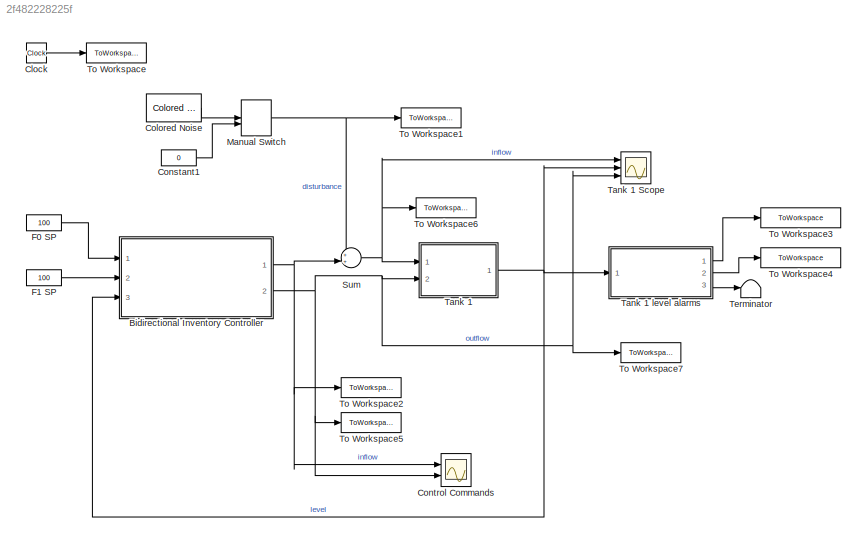
MODEL slx_2f482228225f
KIND model
CONFIG AbsTol = auto
CONFIG EnableMultiTasking = off
CONFIG FixedStep = auto
CONFIG MaxStep = auto
CONFIG MinStep = auto
CONFIG RelTol = 1e-3
CONFIG SampleTimeConstraint = Unconstrained
CONFIG SolverName = VariableStepAuto
CONFIG StartTime = 0.0
CONFIG StopTime = 1000
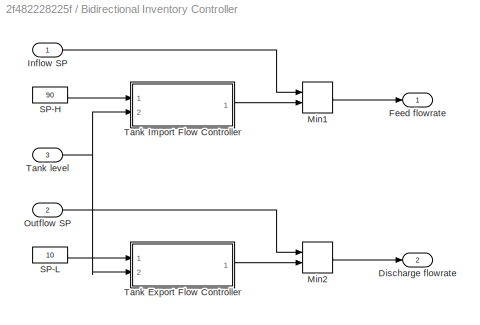
BLOCK [SubSystem] Bidirectional Inventory Controller
  Ports = [3, 2]
  RequestExecContextInheritance = off
BLOCK [Outport] Bidirectional Inventory Controller/Discharge flowrate
  Port = 2
BLOCK [Outport] Bidirectional Inventory Controller/Feed flowrate
BLOCK [Inport] Bidirectional Inventory Controller/Inflow SP
BLOCK [MinMax] Bidirectional Inventory Controller/Min1
  Inputs = 2
  Ports = [2, 1]
BLOCK [MinMax] Bidirectional Inventory Controller/Min2
  Inputs = 2
  Ports = [2, 1]
BLOCK [Inport] Bidirectional Inventory Controller/Outflow SP
  Port = 2
BLOCK [Constant] Bidirectional Inventory Controller/SP-H
  Value = 90
BLOCK [Constant] Bidirectional Inventory Controller/SP-L
  Value = 10
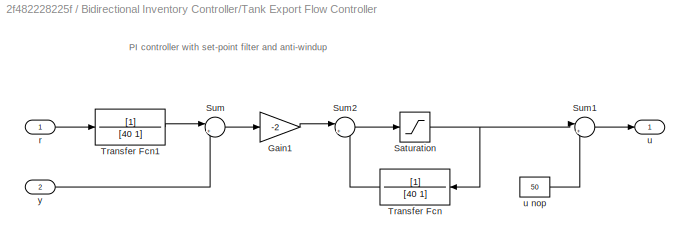
BLOCK [SubSystem] Bidirectional Inventory Controller/Tank Export Flow Controller
  Ports = [2, 1]
  RequestExecContextInheritance = off
BLOCK [Gain] Bidirectional Inventory Controller/Tank Export Flow Controller/Gain1
  Gain = -2
BLOCK [Saturate] Bidirectional Inventory Controller/Tank Export Flow Controller/Saturation
  LowerLimit = -50
  UpperLimit = 50
BLOCK [Sum] Bidirectional Inventory Controller/Tank Export Flow Controller/Sum
  Inputs = |+-
  Ports = [2, 1]
BLOCK [Sum] Bidirectional Inventory Controller/Tank Export Flow Controller/Sum1
  Inputs = |++
  Ports = [2, 1]
BLOCK [Sum] Bidirectional Inventory Controller/Tank Export Flow Controller/Sum2
  Inputs = |++
  Ports = [2, 1]
BLOCK [TransferFcn] Bidirectional Inventory Controller/Tank Export Flow Controller/Transfer Fcn
  Denominator = [40 1]
BLOCK [TransferFcn] Bidirectional Inventory Controller/Tank Export Flow Controller/Transfer Fcn1
  Denominator = [40 1]
BLOCK [Inport] Bidirectional Inventory Controller/Tank Export Flow Controller/r
BLOCK [Outport] Bidirectional Inventory Controller/Tank Export Flow Controller/u
BLOCK [Constant] Bidirectional Inventory Controller/Tank Export Flow Controller/u nop
  Value = 50
BLOCK [Inport] Bidirectional Inventory Controller/Tank Export Flow Controller/y
  Port = 2
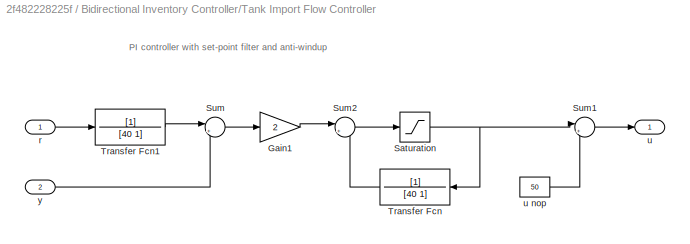
BLOCK [SubSystem] Bidirectional Inventory Controller/Tank Import Flow Controller
  Ports = [2, 1]
  RequestExecContextInheritance = off
BLOCK [Gain] Bidirectional Inventory Controller/Tank Import Flow Controller/Gain1
  Gain = 2
BLOCK [Saturate] Bidirectional Inventory Controller/Tank Import Flow Controller/Saturation
  LowerLimit = -50
  UpperLimit = 50
BLOCK [Sum] Bidirectional Inventory Controller/Tank Import Flow Controller/Sum
  Inputs = |+-
  Ports = [2, 1]
BLOCK [Sum] Bidirectional Inventory Controller/Tank Import Flow Controller/Sum1
  Inputs = |++
  Ports = [2, 1]
BLOCK [Sum] Bidirectional Inventory Controller/Tank Import Flow Controller/Sum2
  Inputs = |++
  Ports = [2, 1]
BLOCK [TransferFcn] Bidirectional Inventory Controller/Tank Import Flow Controller/Transfer Fcn
  Denominator = [40 1]
BLOCK [TransferFcn] Bidirectional Inventory Controller/Tank Import Flow Controller/Transfer Fcn1
  Denominator = [40 1]
BLOCK [Inport] Bidirectional Inventory Controller/Tank Import Flow Controller/r
BLOCK [Outport] Bidirectional Inventory Controller/Tank Import Flow Controller/u
BLOCK [Constant] Bidirectional Inventory Controller/Tank Import Flow Controller/u nop
  Value = 50
BLOCK [Inport] Bidirectional Inventory Controller/Tank Import Flow Controller/y
  Port = 2
BLOCK [Inport] Bidirectional Inventory Controller/Tank level
  Port = 3
BLOCK [Clock] Clock
BLOCK [Reference] Colored Noise  REF=dspsrcs4/Colored Noise
  Ports = [0, 1]
  SourceBlock = dspsrcs4/Colored Noise
  SourceProductBaseCode = DS
  SourceType = dsp.simulink.ColoredNoise
BLOCK [Constant] Constant1
  SampleTime = 1
  Value = 0
BLOCK [Scope] Control Commands
  Floating = off
  NumInputPorts = 2
  Ports = [2]
  ScopeSpecificationString = Simulink.scopes.TimeScopeBlockCfg('CurrentConfiguration', extmgr.ConfigurationSet(extmgr.Configuration('Core','General UI',true,'FigureColor',[1 1 1]),extmgr.Configuration('Core','Source UI',true),extmgr.Configuration('Sources','WiredSimulink',true),extmgr.Configuration('Visuals','Time Domain',true,'SerializedDisplays',{struct('MinYLimReal','43.47228','MaxYLimReal','106.28086','YLabelReal','','Min...<+1915ch>
BLOCK [Constant] F0 SP
  Value = 100
BLOCK [Constant] F1 SP
  Value = 100
BLOCK [ManualSwitch] Manual Switch
  CurrentSetting = 0
BLOCK [Sum] Sum
  Inputs = ++|
  Ports = [2, 1]
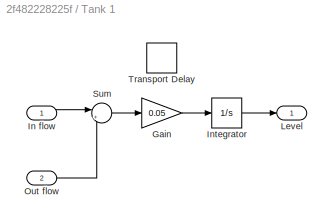
BLOCK [SubSystem] Tank 1
  Ports = [2, 1]
  RequestExecContextInheritance = off
BLOCK [Scope] Tank 1 Scope
  Floating = off
  NumInputPorts = 3
  Ports = [3]
  ScopeSpecificationString = Simulink.scopes.TimeScopeBlockCfg('CurrentConfiguration', extmgr.ConfigurationSet(extmgr.Configuration('Core','General UI',true,'FigureColor',[1 1 1]),extmgr.Configuration('Core','Source UI',true),extmgr.Configuration('Sources','WiredSimulink',true,'DataLoggingVariableName','ScopeData1'),extmgr.Configuration('Visuals','Time Domain',true,'SerializedDisplays',{struct('MinYLimReal','-12.85584','MaxYL...<+1962ch>
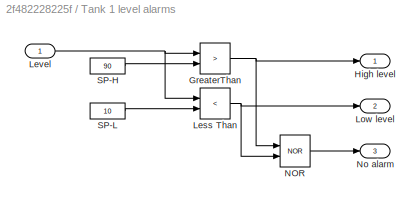
BLOCK [SubSystem] Tank 1 level alarms
  Ports = [1, 3]
  RequestExecContextInheritance = off
BLOCK [RelationalOperator] Tank 1 level alarms/GreaterThan
  InputSameDT = off
  Operator = >
  OutDataTypeStr = boolean
  Ports = [2, 1]
  RndMeth = Simplest
BLOCK [Outport] Tank 1 level alarms/High level
BLOCK [RelationalOperator] Tank 1 level alarms/Less Than
  InputSameDT = off
  Operator = <
  OutDataTypeStr = boolean
  Ports = [2, 1]
  RndMeth = Simplest
BLOCK [Inport] Tank 1 level alarms/Level
BLOCK [Outport] Tank 1 level alarms/Low level
  Port = 2
BLOCK [Logic] Tank 1 level alarms/NOR
  AllPortsSameDT = off
  IconShape = distinctive
  Operator = NOR
  OutDataTypeStr = boolean
  Ports = [2, 1]
BLOCK [Outport] Tank 1 level alarms/No alarm
  Port = 3
BLOCK [Constant] Tank 1 level alarms/SP-H
  Value = 90
BLOCK [Constant] Tank 1 level alarms/SP-L
  Value = 10
BLOCK [Gain] Tank 1/Gain
  Gain = 0.05
BLOCK [Inport] Tank 1/In flow
BLOCK [Integrator] Tank 1/Integrator
  Ports = [1, 1]
BLOCK [Outport] Tank 1/Level
  InitialOutput = 0
BLOCK [Inport] Tank 1/Out flow
  Port = 2
BLOCK [Sum] Tank 1/Sum
  Inputs = |+-
  Ports = [2, 1]
BLOCK [TransportDelay] Tank 1/Transport Delay
  Commented = on
  DelayTime = 0
  Ports = [1, 1]
BLOCK [Terminator] Terminator
BLOCK [ToWorkspace] To Workspace
  FixptAsFi = on
  MaxDataPoints = inf
  Ports = [1]
  SampleTime = 1
  VariableName = t
BLOCK [ToWorkspace] To Workspace1
  FixptAsFi = on
  MaxDataPoints = inf
  Ports = [1]
  SampleTime = 1
  Save2DSignal = 2-D array (concatenate along first dimension)
  VariableName = p1
BLOCK [ToWorkspace] To Workspace2
  FixptAsFi = on
  MaxDataPoints = inf
  Ports = [1]
  SampleTime = 1
  VariableName = u1
BLOCK [ToWorkspace] To Workspace3
  FixptAsFi = on
  MaxDataPoints = inf
  Ports = [1]
  SampleTime = 1
  VariableName = LA1_H
BLOCK [ToWorkspace] To Workspace4
  FixptAsFi = on
  MaxDataPoints = inf
  Ports = [1]
  SampleTime = 1
  VariableName = LA1_L
BLOCK [ToWorkspace] To Workspace5
  FixptAsFi = on
  MaxDataPoints = inf
  Ports = [1]
  SampleTime = 1
  VariableName = u2
BLOCK [ToWorkspace] To Workspace6
  FixptAsFi = on
  MaxDataPoints = inf
  Ports = [1]
  SampleTime = 1
  VariableName = F0
BLOCK [ToWorkspace] To Workspace7
  FixptAsFi = on
  MaxDataPoints = inf
  Ports = [1]
  SampleTime = 1
  VariableName = F1
ANNOTATION Bidirectional Inventory Controller/Tank Export Flow Controller: PI controller with set-point filter and anti-windup
ANNOTATION Bidirectional Inventory Controller/Tank Import Flow Controller: PI controller with set-point filter and anti-windup
LINE Bidirectional Inventory Controller/Inflow SP:1 -> Bidirectional Inventory Controller/Min1:1
LINE Bidirectional Inventory Controller/Min1:1 -> Bidirectional Inventory Controller/Feed flowrate:1
LINE Bidirectional Inventory Controller/Min2:1 -> Bidirectional Inventory Controller/Discharge flowrate:1
LINE Bidirectional Inventory Controller/Outflow SP:1 -> Bidirectional Inventory Controller/Min2:1
LINE Bidirectional Inventory Controller/SP-H:1 -> Bidirectional Inventory Controller/Tank Import Flow Controller:1
LINE Bidirectional Inventory Controller/SP-L:1 -> Bidirectional Inventory Controller/Tank Export Flow Controller:1
LINE Bidirectional Inventory Controller/Tank Export Flow Controller/Gain1:1 -> Bidirectional Inventory Controller/Tank Export Flow Controller/Sum2:1
NET Bidirectional Inventory Controller/Tank Export Flow Controller/Saturation:1 -> Bidirectional Inventory Controller/Tank Export Flow Controller/Sum1:1, Bidirectional Inventory Controller/Tank Export Flow Controller/Transfer Fcn:1
LINE Bidirectional Inventory Controller/Tank Export Flow Controller/Sum1:1 -> Bidirectional Inventory Controller/Tank Export Flow Controller/u:1
LINE Bidirectional Inventory Controller/Tank Export Flow Controller/Sum2:1 -> Bidirectional Inventory Controller/Tank Export Flow Controller/Saturation:1
LINE Bidirectional Inventory Controller/Tank Export Flow Controller/Sum:1 -> Bidirectional Inventory Controller/Tank Export Flow Controller/Gain1:1
LINE Bidirectional Inventory Controller/Tank Export Flow Controller/Transfer Fcn1:1 -> Bidirectional Inventory Controller/Tank Export Flow Controller/Sum:1
LINE Bidirectional Inventory Controller/Tank Export Flow Controller/Transfer Fcn:1 -> Bidirectional Inventory Controller/Tank Export Flow Controller/Sum2:2
LINE Bidirectional Inventory Controller/Tank Export Flow Controller/r:1 -> Bidirectional Inventory Controller/Tank Export Flow Controller/Transfer Fcn1:1
LINE Bidirectional Inventory Controller/Tank Export Flow Controller/u nop:1 -> Bidirectional Inventory Controller/Tank Export Flow Controller/Sum1:2
LINE Bidirectional Inventory Controller/Tank Export Flow Controller/y:1 -> Bidirectional Inventory Controller/Tank Export Flow Controller/Sum:2
LINE Bidirectional Inventory Controller/Tank Export Flow Controller:1 -> Bidirectional Inventory Controller/Min2:2
LINE Bidirectional Inventory Controller/Tank Import Flow Controller/Gain1:1 -> Bidirectional Inventory Controller/Tank Import Flow Controller/Sum2:1
NET Bidirectional Inventory Controller/Tank Import Flow Controller/Saturation:1 -> Bidirectional Inventory Controller/Tank Import Flow Controller/Sum1:1, Bidirectional Inventory Controller/Tank Import Flow Controller/Transfer Fcn:1
LINE Bidirectional Inventory Controller/Tank Import Flow Controller/Sum1:1 -> Bidirectional Inventory Controller/Tank Import Flow Controller/u:1
LINE Bidirectional Inventory Controller/Tank Import Flow Controller/Sum2:1 -> Bidirectional Inventory Controller/Tank Import Flow Controller/Saturation:1
LINE Bidirectional Inventory Controller/Tank Import Flow Controller/Sum:1 -> Bidirectional Inventory Controller/Tank Import Flow Controller/Gain1:1
LINE Bidirectional Inventory Controller/Tank Import Flow Controller/Transfer Fcn1:1 -> Bidirectional Inventory Controller/Tank Import Flow Controller/Sum:1
LINE Bidirectional Inventory Controller/Tank Import Flow Controller/Transfer Fcn:1 -> Bidirectional Inventory Controller/Tank Import Flow Controller/Sum2:2
LINE Bidirectional Inventory Controller/Tank Import Flow Controller/r:1 -> Bidirectional Inventory Controller/Tank Import Flow Controller/Transfer Fcn1:1
LINE Bidirectional Inventory Controller/Tank Import Flow Controller/u nop:1 -> Bidirectional Inventory Controller/Tank Import Flow Controller/Sum1:2
LINE Bidirectional Inventory Controller/Tank Import Flow Controller/y:1 -> Bidirectional Inventory Controller/Tank Import Flow Controller/Sum:2
LINE Bidirectional Inventory Controller/Tank Import Flow Controller:1 -> Bidirectional Inventory Controller/Min1:2
NET Bidirectional Inventory Controller/Tank level:1 -> Bidirectional Inventory Controller/Tank Export Flow Controller:2, Bidirectional Inventory Controller/Tank Import Flow Controller:2
NET Bidirectional Inventory Controller:1 -> Control Commands:1, Sum:2, To Workspace2:1
NET Bidirectional Inventory Controller:2 -> Control Commands:2, Tank 1 Scope:3, Tank 1:2, To Workspace5:1, To Workspace7:1
LINE Clock:1 -> To Workspace:1
LINE Colored Noise:1 -> Manual Switch:1
LINE Constant1:1 -> Manual Switch:2
LINE F0 SP:1 -> Bidirectional Inventory Controller:1
LINE F1 SP:1 -> Bidirectional Inventory Controller:2
NET Manual Switch:1 -> Sum:1, To Workspace1:1
NET Sum:1 -> Tank 1 Scope:1, Tank 1:1, To Workspace6:1
NET Tank 1 level alarms/GreaterThan:1 -> Tank 1 level alarms/High level:1, Tank 1 level alarms/NOR:1
NET Tank 1 level alarms/Less Than:1 -> Tank 1 level alarms/Low level:1, Tank 1 level alarms/NOR:2
NET Tank 1 level alarms/Level:1 -> Tank 1 level alarms/GreaterThan:1, Tank 1 level alarms/Less Than:1
LINE Tank 1 level alarms/NOR:1 -> Tank 1 level alarms/No alarm:1
LINE Tank 1 level alarms/SP-H:1 -> Tank 1 level alarms/GreaterThan:2
LINE Tank 1 level alarms/SP-L:1 -> Tank 1 level alarms/Less Than:2
LINE Tank 1 level alarms:1 -> To Workspace3:1
LINE Tank 1 level alarms:2 -> To Workspace4:1
LINE Tank 1 level alarms:3 -> Terminator:1
LINE Tank 1/Gain:1 -> Tank 1/Integrator:1
LINE Tank 1/In flow:1 -> Tank 1/Sum:1
LINE Tank 1/Integrator:1 -> Tank 1/Level:1
LINE Tank 1/Out flow:1 -> Tank 1/Sum:2
LINE Tank 1/Sum:1 -> Tank 1/Gain:1
NET Tank 1:1 -> Bidirectional Inventory Controller:3, Tank 1 Scope:2, Tank 1 level alarms:1
note: NET lines group one-source signal fan-out (src -> all destinations, sorted); 1:1 wires keep LINE
